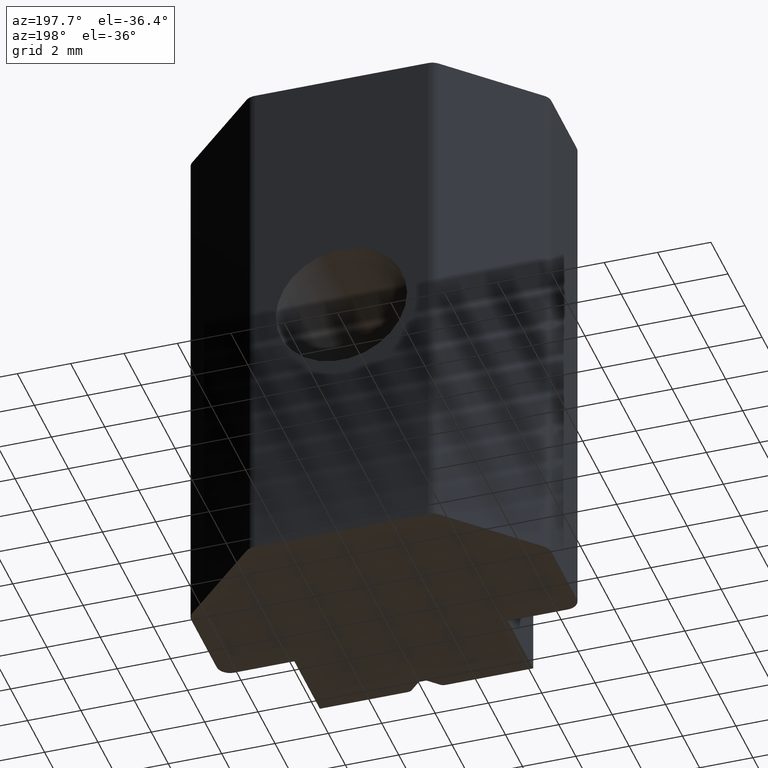
[diagram: clean part render]
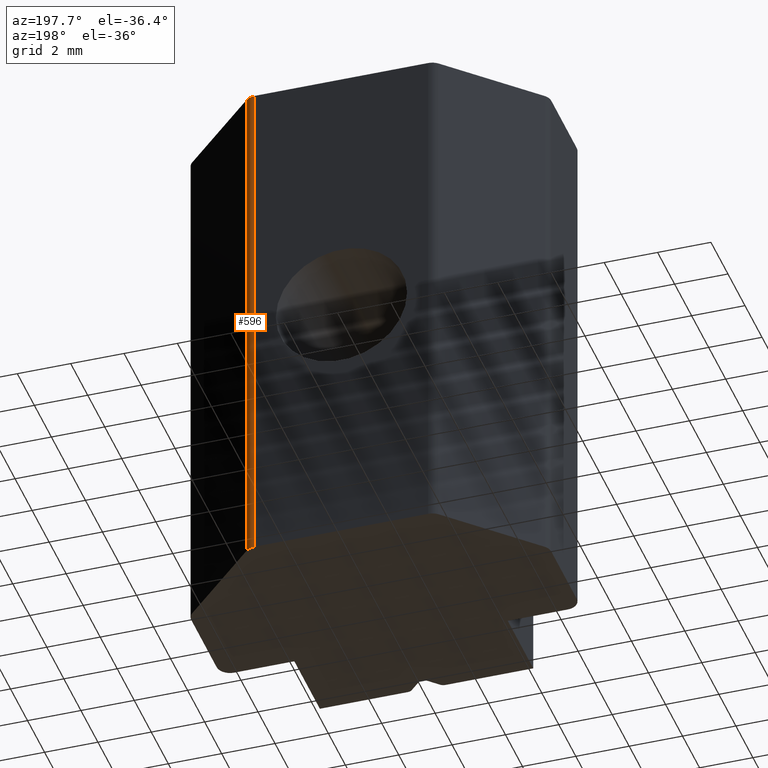
[diagram: same view with one face highlighted and labeled with its STEP entity id]
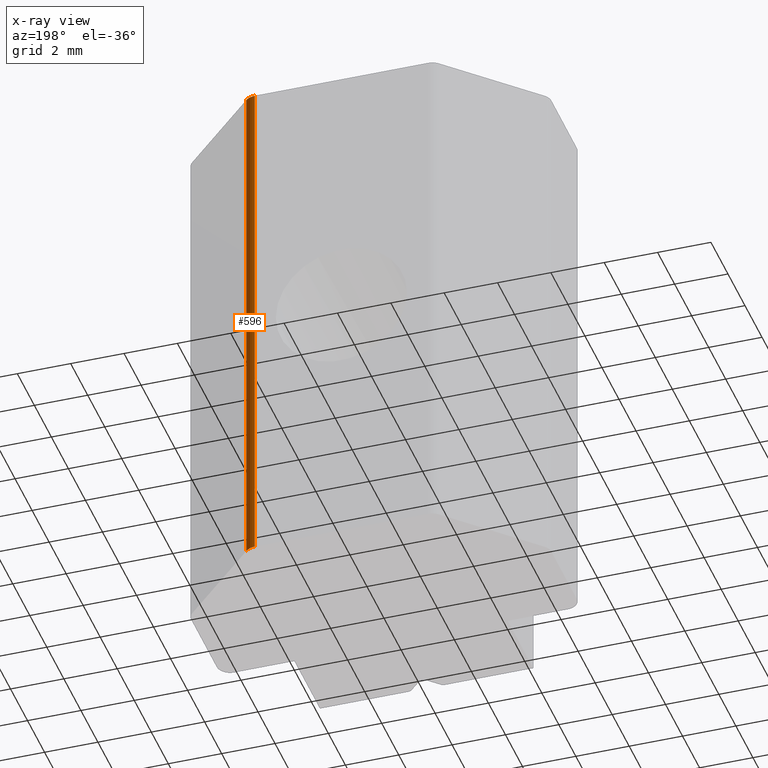
[diagram: x-ray of the same camera — body ghosted, the highlighted face saturated]
A machine part, auxiliary view. The second image highlights one B-rep face of the part: STEP entity #596.
The next image is the same camera in x-ray: the body ghosted, the highlighted face saturated — about 0% of this face is hidden behind the body in this view.
In plain terms, the highlighted cylindrical surface (edge-blend (fillet) strip) has radius 0.5 mm, axis along (0, 0, 1).
Its self-contained STEP definition (entity closure, byte-faithful):
#56=FACE_OUTER_BOUND('',#87,.T.);
#87=EDGE_LOOP('',(#514,#515,#516,#517));
#150=LINE('',#1043,#205);
#151=LINE('',#1047,#206);
#205=VECTOR('',#822,10.);
#206=VECTOR('',#827,10.);
#228=CIRCLE('',#655,0.5);
#234=CIRCLE('',#671,0.5);
#275=VERTEX_POINT('',#993);
#276=VERTEX_POINT('',#995);
#290=VERTEX_POINT('',#1041);
#291=VERTEX_POINT('',#1045);
#348=EDGE_CURVE('',#275,#276,#228,.T.);
#372=EDGE_CURVE('',#275,#290,#150,.T.);
#373=EDGE_CURVE('',#291,#290,#234,.T.);
#374=EDGE_CURVE('',#276,#291,#151,.T.);
#514=ORIENTED_EDGE('',*,*,#372,.T.);
#515=ORIENTED_EDGE('',*,*,#373,.F.);
#516=ORIENTED_EDGE('',*,*,#374,.F.);
#517=ORIENTED_EDGE('',*,*,#348,.F.);
#570=CYLINDRICAL_SURFACE('',#670,0.5);
#596=ADVANCED_FACE('',(#56),#570,.T.);
#655=AXIS2_PLACEMENT_3D('',#996,#774,#775);
#670=AXIS2_PLACEMENT_3D('',#1044,#823,#824);
#671=AXIS2_PLACEMENT_3D('',#1046,#825,#826);
#774=DIRECTION('center_axis',(0.,0.,-1.));
#775=DIRECTION('ref_axis',(0.707106781186548,0.707106781186547,0.));
#822=DIRECTION('',(0.,0.,1.));
#823=DIRECTION('center_axis',(0.,0.,1.));
#824=DIRECTION('ref_axis',(0.707106781186548,0.707106781186547,0.));
#825=DIRECTION('center_axis',(0.,0.,1.));
#826=DIRECTION('ref_axis',(0.707106781186548,0.707106781186547,0.));
#827=DIRECTION('',(0.,0.,1.));
#993=CARTESIAN_POINT('',(3.25,7.,-10.));
#995=CARTESIAN_POINT('',(3.60355339059328,6.85355339059327,-10.));
#996=CARTESIAN_POINT('Origin',(3.25,6.5,-10.));
#1041=CARTESIAN_POINT('',(3.25,7.,10.));
#1043=CARTESIAN_POINT('',(3.25,7.,0.));
#1044=CARTESIAN_POINT('Origin',(3.25,6.5,0.));
#1045=CARTESIAN_POINT('',(3.60355339059328,6.85355339059327,10.));
#1046=CARTESIAN_POINT('Origin',(3.25,6.5,10.));
#1047=CARTESIAN_POINT('',(3.60355339059328,6.85355339059327,0.));